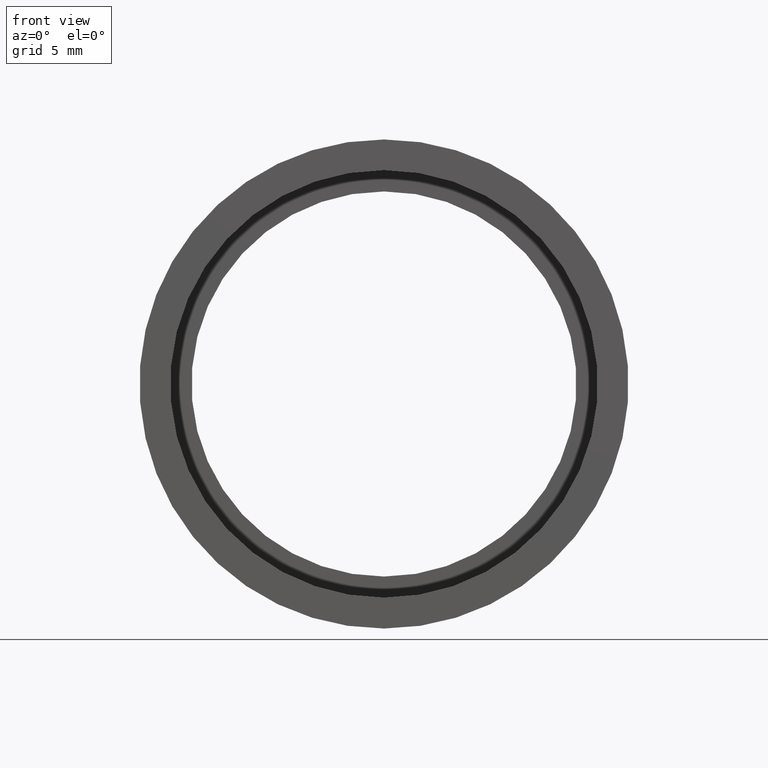
[diagram: clean part render]
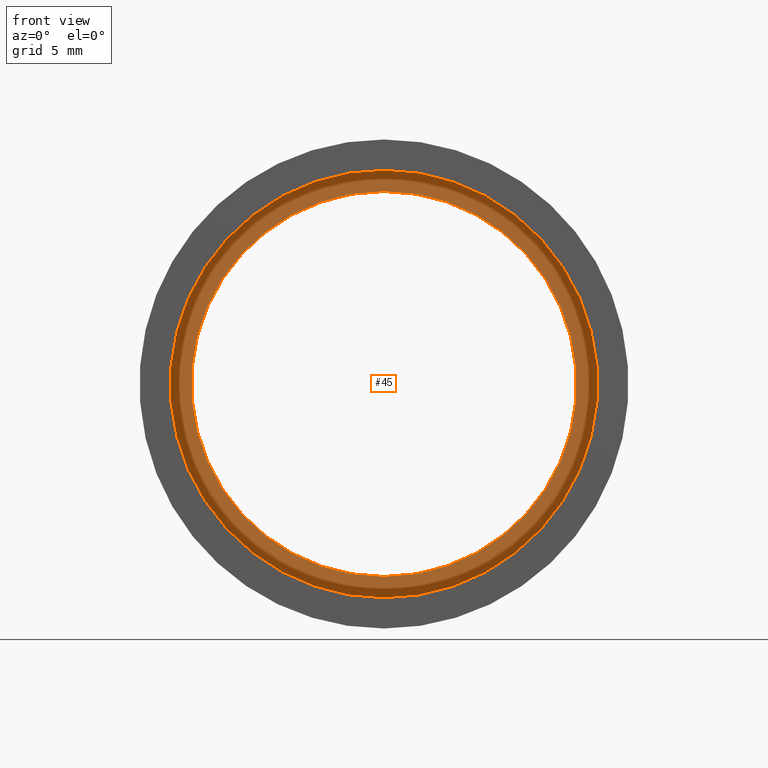
[diagram: same view with one face highlighted and labeled with its STEP entity id]
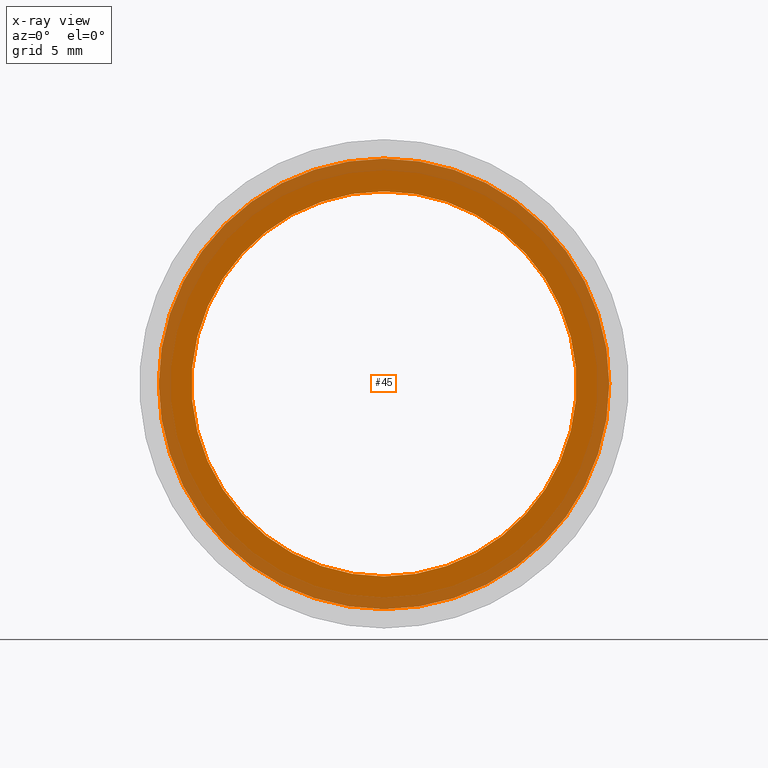
[diagram: x-ray of the same camera — body ghosted, the highlighted face saturated]
A machine part, front view. The second image highlights one B-rep face of the part: STEP entity #45.
The next image is the same camera in x-ray: the body ghosted, the highlighted face saturated — about 37% of this face is hidden behind the body in this view.
In plain terms, the highlighted planar face has unit normal (-0, 1, 0).
Its self-contained STEP definition (entity closure, byte-faithful):
#5 = CARTESIAN_POINT ( 'NONE',  ( 0.0000000000000000000, 5.499999999999976900, 0.0000000000000000000 ) ) ;
#45 = ADVANCED_FACE ( 'NONE', ( #398, #414 ), #554, .F. ) ;
#70 = DIRECTION ( 'NONE',  ( -0.0000000000000000000, 1.000000000000000000, -0.0000000000000000000 ) ) ;
#86 = CIRCLE ( 'NONE', #351, 10.00000000000002000 ) ;
#90 = EDGE_CURVE ( 'NONE', #325, #543, #373, .T. ) ;
#107 = AXIS2_PLACEMENT_3D ( 'NONE', #406, #267, #464 ) ;
#127 = DIRECTION ( 'NONE',  ( 0.0000000000000000000, 0.0000000000000000000, 1.000000000000000000 ) ) ;
#128 = VERTEX_POINT ( 'NONE', #335 ) ;
#184 = CARTESIAN_POINT ( 'NONE',  ( 1.432836755002405700E-015, 5.499999999999976900, -11.70000000000001900 ) ) ;
#228 = CIRCLE ( 'NONE', #623, 10.00000000000002000 ) ;
#234 = CARTESIAN_POINT ( 'NONE',  ( 0.0000000000000000000, 5.499999999999976900, 0.0000000000000000000 ) ) ;
#248 = VERTEX_POINT ( 'NONE', #289 ) ;
#254 = DIRECTION ( 'NONE',  ( 0.0000000000000000000, 0.0000000000000000000, 1.000000000000000000 ) ) ;
#267 = DIRECTION ( 'NONE',  ( -0.0000000000000000000, 1.000000000000000000, 0.0000000000000000000 ) ) ;
#269 = DIRECTION ( 'NONE',  ( 0.0000000000000000000, 0.0000000000000000000, 1.000000000000000000 ) ) ;
#275 = CARTESIAN_POINT ( 'NONE',  ( 0.0000000000000000000, 5.499999999999976900, 0.0000000000000000000 ) ) ;
#276 = DIRECTION ( 'NONE',  ( -0.0000000000000000000, 1.000000000000000000, -0.0000000000000000000 ) ) ;
#279 = ORIENTED_EDGE ( 'NONE', *, *, #584, .T. ) ;
#289 = CARTESIAN_POINT ( 'NONE',  ( 1.224646799147355400E-015, 5.499999999999976900, -10.00000000000002000 ) ) ;
#303 = CIRCLE ( 'NONE', #576, 11.70000000000001900 ) ;
#307 = ORIENTED_EDGE ( 'NONE', *, *, #90, .F. ) ;
#317 = DIRECTION ( 'NONE',  ( -0.0000000000000000000, 1.000000000000000000, -0.0000000000000000000 ) ) ;
#325 = VERTEX_POINT ( 'NONE', #184 ) ;
#335 = CARTESIAN_POINT ( 'NONE',  ( 0.0000000000000000000, 5.499999999999976900, 10.00000000000002000 ) ) ;
#336 = EDGE_CURVE ( 'NONE', #543, #325, #303, .T. ) ;
#351 = AXIS2_PLACEMENT_3D ( 'NONE', #275, #317, #269 ) ;
#364 = ORIENTED_EDGE ( 'NONE', *, *, #616, .T. ) ;
#373 = CIRCLE ( 'NONE', #529, 11.70000000000001900 ) ;
#380 = EDGE_LOOP ( 'NONE', ( #400, #307 ) ) ;
#398 = FACE_OUTER_BOUND ( 'NONE', #380, .T. ) ;
#400 = ORIENTED_EDGE ( 'NONE', *, *, #336, .F. ) ;
#403 = CARTESIAN_POINT ( 'NONE',  ( 0.0000000000000000000, 5.499999999999976900, 11.70000000000001900 ) ) ;
#406 = CARTESIAN_POINT ( 'NONE',  ( 11.70000000000001900, 5.499999999999982200, 0.0000000000000000000 ) ) ;
#414 = FACE_BOUND ( 'NONE', #505, .T. ) ;
#443 = DIRECTION ( 'NONE',  ( -0.0000000000000000000, 1.000000000000000000, -0.0000000000000000000 ) ) ;
#464 = DIRECTION ( 'NONE',  ( 0.0000000000000000000, 0.0000000000000000000, 1.000000000000000000 ) ) ;
#505 = EDGE_LOOP ( 'NONE', ( #364, #279 ) ) ;
#529 = AXIS2_PLACEMENT_3D ( 'NONE', #234, #276, #127 ) ;
#543 = VERTEX_POINT ( 'NONE', #403 ) ;
#554 = PLANE ( 'NONE',  #107 ) ;
#557 = CARTESIAN_POINT ( 'NONE',  ( 0.0000000000000000000, 5.499999999999976900, 0.0000000000000000000 ) ) ;
#559 = DIRECTION ( 'NONE',  ( 0.0000000000000000000, 0.0000000000000000000, 1.000000000000000000 ) ) ;
#576 = AXIS2_PLACEMENT_3D ( 'NONE', #5, #443, #254 ) ;
#584 = EDGE_CURVE ( 'NONE', #248, #128, #228, .T. ) ;
#616 = EDGE_CURVE ( 'NONE', #128, #248, #86, .T. ) ;
#623 = AXIS2_PLACEMENT_3D ( 'NONE', #557, #70, #559 ) ;